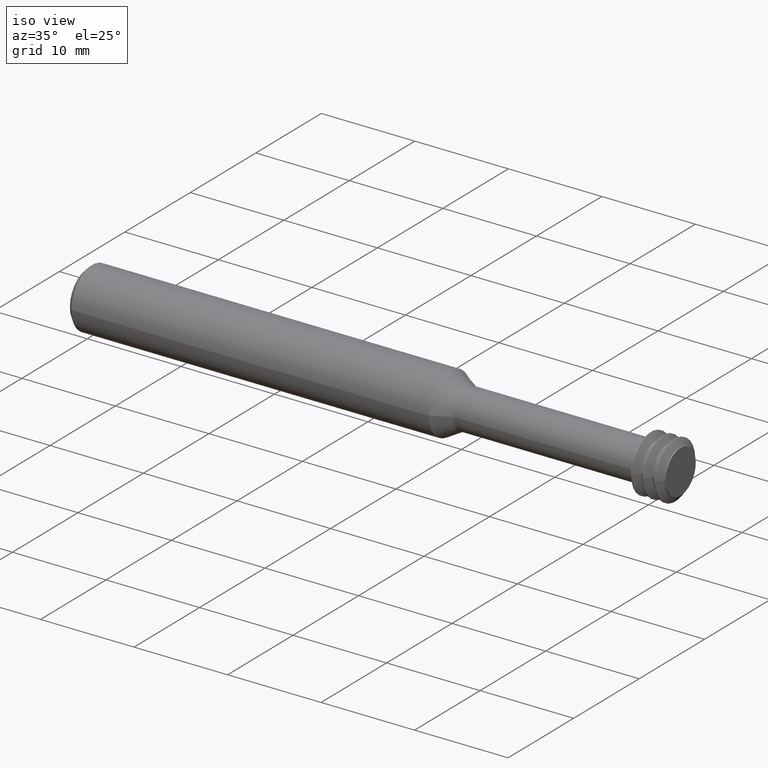
[diagram: clean part render]
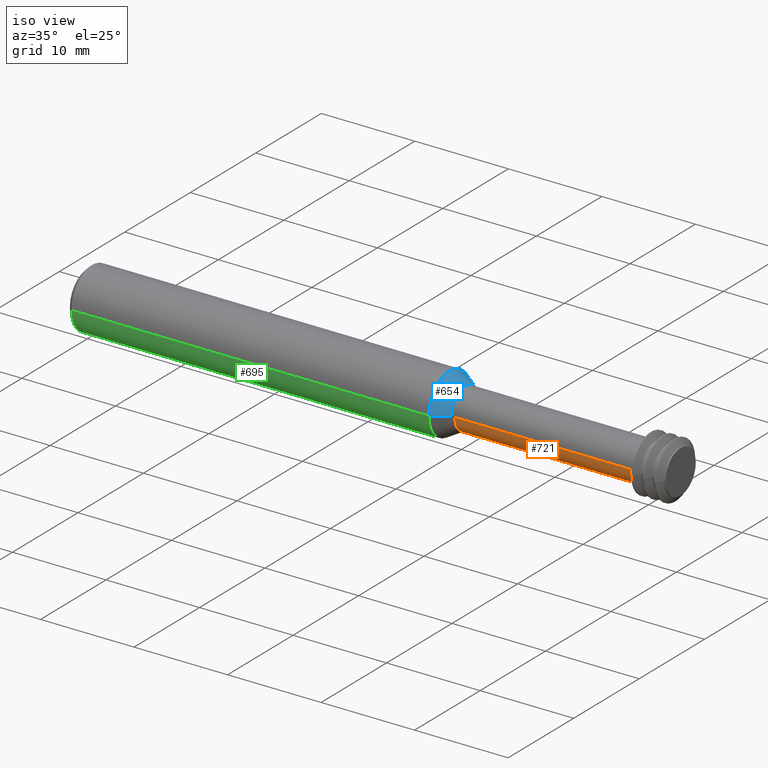
[diagram: same view with three faces highlighted in distinct colors, each labeled with its STEP entity id]
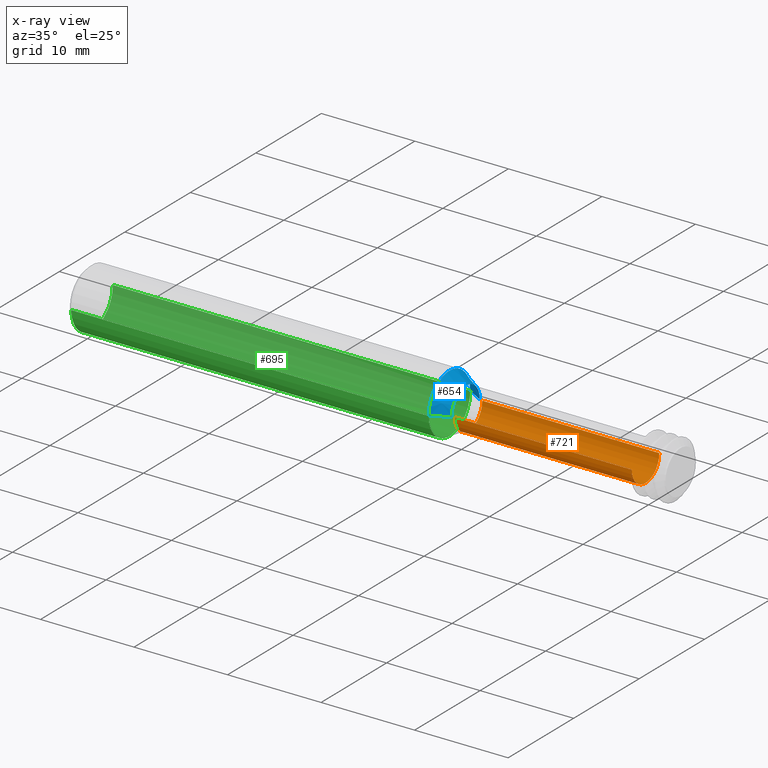
[diagram: x-ray of the same camera — body ghosted, the three highlighted faces saturated]
A machine part, iso view with three faces highlighted in distinct colors.
The next image is the same camera in x-ray (body ghosted, the three faces saturated) — at least one of them is partly hidden behind the body in this view.
Their STEP definitions:

[orange] entity #721 — the highlighted cylindrical surface (edge-blend (fillet) strip) has radius 2.0955 mm, axis along (-1, 0, -0).
#14 = VECTOR ( 'NONE', #234, 39.37007874015748143 ) ;
#32 = DIRECTION ( 'NONE',  ( 0.0000000000000000000, -1.000000000000000000, 0.0000000000000000000 ) ) ;
#41 = EDGE_CURVE ( 'NONE', #825, #909, #493, .T. ) ;
#69 = CARTESIAN_POINT ( 'NONE',  ( 2.350000000000000089, 0.08250000000000004552, 1.010333609296566932E-17 ) ) ;
#82 = DIRECTION ( 'NONE',  ( -1.000000000000000000, 2.239313081137374464E-19, -0.0000000000000000000 ) ) ;
#113 = CARTESIAN_POINT ( 'NONE',  ( 2.350000000000000089, -7.258347044323575049E-19, 0.0000000000000000000 ) ) ;
#137 = DIRECTION ( 'NONE',  ( 0.0000000000000000000, -1.000000000000000000, 0.0000000000000000000 ) ) ;
#141 = DIRECTION ( 'NONE',  ( -1.000000000000000000, 2.239313081137374464E-19, -0.0000000000000000000 ) ) ;
#150 = CARTESIAN_POINT ( 'NONE',  ( 1.604698729810777991, -5.589384160600548992E-19, 0.0000000000000000000 ) ) ;
#171 = EDGE_CURVE ( 'NONE', #825, #663, #604, .T. ) ;
#229 = CARTESIAN_POINT ( 'NONE',  ( 2.350000000000000089, 0.08250000000000004552, 1.010333609296566932E-17 ) ) ;
#234 = DIRECTION ( 'NONE',  ( -1.000000000000000000, 2.239313081137374464E-19, -0.0000000000000000000 ) ) ;
#237 = LINE ( 'NONE', #229, #14 ) ;
#349 = VERTEX_POINT ( 'NONE', #528 ) ;
#372 = CIRCLE ( 'NONE', #571, 0.08250000000000007327 ) ;
#374 = FACE_OUTER_BOUND ( 'NONE', #509, .T. ) ;
#376 = AXIS2_PLACEMENT_3D ( 'NONE', #620, #653, #747 ) ;
#477 = CYLINDRICAL_SURFACE ( 'NONE', #901, 0.08250000000000004552 ) ;
#491 = VECTOR ( 'NONE', #743, 39.37007874015748143 ) ;
#493 = LINE ( 'NONE', #959, #491 ) ;
#509 = EDGE_LOOP ( 'NONE', ( #726, #543, #889, #984 ) ) ;
#528 = CARTESIAN_POINT ( 'NONE',  ( 1.604698729810777991, 0.08250000000000007327, 1.030842554349373242E-17 ) ) ;
#543 = ORIENTED_EDGE ( 'NONE', *, *, #171, .F. ) ;
#551 = CARTESIAN_POINT ( 'NONE',  ( 1.604698729810777991, -0.08250000000000007327, 0.0000000000000000000 ) ) ;
#562 = EDGE_CURVE ( 'NONE', #663, #349, #237, .T. ) ;
#571 = AXIS2_PLACEMENT_3D ( 'NONE', #150, #141, #32 ) ;
#604 = CIRCLE ( 'NONE', #376, 0.08250000000000004552 ) ;
#620 = CARTESIAN_POINT ( 'NONE',  ( 2.350000000000000089, -7.258347044323575049E-19, 0.0000000000000000000 ) ) ;
#643 = CARTESIAN_POINT ( 'NONE',  ( 2.350000000000000089, -0.08250000000000004552, 0.0000000000000000000 ) ) ;
#653 = DIRECTION ( 'NONE',  ( 1.000000000000000000, -2.239313081137374464E-19, 0.0000000000000000000 ) ) ;
#663 = VERTEX_POINT ( 'NONE', #69 ) ;
#721 = ADVANCED_FACE ( 'NONE', ( #374 ), #477, .T. ) ;
#726 = ORIENTED_EDGE ( 'NONE', *, *, #562, .F. ) ;
#743 = DIRECTION ( 'NONE',  ( -1.000000000000000000, 2.239313081137374464E-19, -0.0000000000000000000 ) ) ;
#747 = DIRECTION ( 'NONE',  ( 0.0000000000000000000, 1.000000000000000000, 0.0000000000000000000 ) ) ;
#825 = VERTEX_POINT ( 'NONE', #643 ) ;
#889 = ORIENTED_EDGE ( 'NONE', *, *, #41, .T. ) ;
#901 = AXIS2_PLACEMENT_3D ( 'NONE', #113, #82, #137 ) ;
#909 = VERTEX_POINT ( 'NONE', #551 ) ;
#959 = CARTESIAN_POINT ( 'NONE',  ( 2.350000000000000089, -0.08250000000000004552, 0.0000000000000000000 ) ) ;
#984 = ORIENTED_EDGE ( 'NONE', *, *, #992, .F. ) ;
#992 = EDGE_CURVE ( 'NONE', #349, #909, #372, .T. ) ;

[blue] entity #654 — the highlighted conical surface has half-angle 30 deg.
#8 = DIRECTION ( 'NONE',  ( 0.0000000000000000000, -1.000000000000000000, 0.0000000000000000000 ) ) ;
#11 = DIRECTION ( 'NONE',  ( -1.000000000000000000, 2.239313081137374464E-19, -0.0000000000000000000 ) ) ;
#40 = DIRECTION ( 'NONE',  ( 0.0000000000000000000, -1.000000000000000000, 0.0000000000000000000 ) ) ;
#43 = AXIS2_PLACEMENT_3D ( 'NONE', #81, #11, #8 ) ;
#81 = CARTESIAN_POINT ( 'NONE',  ( 1.524647648299458425, -5.410124726613057189E-19, 0.0000000000000000000 ) ) ;
#125 = ORIENTED_EDGE ( 'NONE', *, *, #772, .T. ) ;
#139 = AXIS2_PLACEMENT_3D ( 'NONE', #292, #274, #40 ) ;
#199 = ORIENTED_EDGE ( 'NONE', *, *, #513, .F. ) ;
#274 = DIRECTION ( 'NONE',  ( -1.000000000000000000, 2.239313081137374464E-19, -0.0000000000000000000 ) ) ;
#292 = CARTESIAN_POINT ( 'NONE',  ( 1.592198729810778035, -5.561392747086332618E-19, 0.0000000000000000000 ) ) ;
#293 = VERTEX_POINT ( 'NONE', #546 ) ;
#301 = CARTESIAN_POINT ( 'NONE',  ( 1.592198729810778035, -0.08584936490538914999, 0.0000000000000000000 ) ) ;
#302 = DIRECTION ( 'NONE',  ( -0.8660254037844380415, -0.5000000000000009992, 0.0000000000000000000 ) ) ;
#308 = AXIS2_PLACEMENT_3D ( 'NONE', #538, #618, #621 ) ;
#357 = VECTOR ( 'NONE', #943, 39.37007874015748143 ) ;
#367 = VERTEX_POINT ( 'NONE', #530 ) ;
#426 = VERTEX_POINT ( 'NONE', #540 ) ;
#513 = EDGE_CURVE ( 'NONE', #910, #426, #989, .T. ) ;
#530 = CARTESIAN_POINT ( 'NONE',  ( 1.592198729810778035, 0.08584936490538914999, 1.290161514068824987E-17 ) ) ;
#538 = CARTESIAN_POINT ( 'NONE',  ( 1.592198729810778035, -5.561392747086332618E-19, 0.0000000000000000000 ) ) ;
#540 = CARTESIAN_POINT ( 'NONE',  ( 1.524647648299458425, -0.1248500000000000026, 0.0000000000000000000 ) ) ;
#546 = CARTESIAN_POINT ( 'NONE',  ( 1.524647648299458425, 0.1248500000000000026, 1.528971528735470422E-17 ) ) ;
#559 = CONICAL_SURFACE ( 'NONE', #139, 0.08584936490538914999, 0.5235987755983000369 ) ;
#568 = CIRCLE ( 'NONE', #43, 0.1248500000000000026 ) ;
#618 = DIRECTION ( 'NONE',  ( -1.000000000000000000, 2.239313081137374464E-19, -0.0000000000000000000 ) ) ;
#621 = DIRECTION ( 'NONE',  ( 0.0000000000000000000, -1.000000000000000000, 0.0000000000000000000 ) ) ;
#623 = CARTESIAN_POINT ( 'NONE',  ( 1.592198729810778035, 0.08584936490538914999, 1.051351499402179399E-17 ) ) ;
#654 = ADVANCED_FACE ( 'NONE', ( #927 ), #559, .T. ) ;
#671 = LINE ( 'NONE', #623, #357 ) ;
#717 = ORIENTED_EDGE ( 'NONE', *, *, #790, .F. ) ;
#739 = CIRCLE ( 'NONE', #308, 0.08584936490538914999 ) ;
#772 = EDGE_CURVE ( 'NONE', #367, #293, #671, .T. ) ;
#790 = EDGE_CURVE ( 'NONE', #426, #293, #568, .T. ) ;
#791 = EDGE_LOOP ( 'NONE', ( #828, #125, #717, #199 ) ) ;
#799 = EDGE_CURVE ( 'NONE', #910, #367, #739, .T. ) ;
#828 = ORIENTED_EDGE ( 'NONE', *, *, #799, .T. ) ;
#829 = VECTOR ( 'NONE', #302, 39.37007874015748143 ) ;
#910 = VERTEX_POINT ( 'NONE', #1024 ) ;
#927 = FACE_OUTER_BOUND ( 'NONE', #791, .T. ) ;
#943 = DIRECTION ( 'NONE',  ( -0.8660254037844380415, 0.5000000000000009992, 6.123233995736778362E-17 ) ) ;
#989 = LINE ( 'NONE', #301, #829 ) ;
#1024 = CARTESIAN_POINT ( 'NONE',  ( 1.592198729810778035, -0.08584936490538914999, 0.0000000000000000000 ) ) ;

[green] entity #695 — the highlighted cylindrical surface (edge-blend (fillet) strip) has radius 3.1712 mm, axis along (-1, 0, -0).
#10 = DIRECTION ( 'NONE',  ( 0.0000000000000000000, -1.000000000000000000, 0.0000000000000000000 ) ) ;
#50 = EDGE_CURVE ( 'NONE', #227, #685, #451, .T. ) ;
#64 = ORIENTED_EDGE ( 'NONE', *, *, #130, .F. ) ;
#74 = ORIENTED_EDGE ( 'NONE', *, *, #1026, .T. ) ;
#122 = LINE ( 'NONE', #778, #691 ) ;
#130 = EDGE_CURVE ( 'NONE', #293, #227, #122, .T. ) ;
#175 = ORIENTED_EDGE ( 'NONE', *, *, #362, .T. ) ;
#227 = VERTEX_POINT ( 'NONE', #424 ) ;
#293 = VERTEX_POINT ( 'NONE', #546 ) ;
#317 = VECTOR ( 'NONE', #712, 39.37007874015748143 ) ;
#362 = EDGE_CURVE ( 'NONE', #293, #426, #591, .T. ) ;
#398 = AXIS2_PLACEMENT_3D ( 'NONE', #454, #449, #448 ) ;
#424 = CARTESIAN_POINT ( 'NONE',  ( 0.02000000000000005940, 0.1248500000000000026, 0.0000000000000000000 ) ) ;
#426 = VERTEX_POINT ( 'NONE', #540 ) ;
#448 = DIRECTION ( 'NONE',  ( 0.0000000000000000000, -1.000000000000000000, 0.0000000000000000000 ) ) ;
#449 = DIRECTION ( 'NONE',  ( -1.000000000000000000, 2.239313081137374464E-19, -0.0000000000000000000 ) ) ;
#451 = CIRCLE ( 'NONE', #1004, 0.1248500000000000026 ) ;
#454 = CARTESIAN_POINT ( 'NONE',  ( 1.524647648299458425, -5.410124726613057189E-19, 0.0000000000000000000 ) ) ;
#531 = CYLINDRICAL_SURFACE ( 'NONE', #677, 0.1248500000000000026 ) ;
#540 = CARTESIAN_POINT ( 'NONE',  ( 1.524647648299458425, -0.1248500000000000026, 0.0000000000000000000 ) ) ;
#546 = CARTESIAN_POINT ( 'NONE',  ( 1.524647648299458425, 0.1248500000000000026, 1.528971528735470422E-17 ) ) ;
#591 = CIRCLE ( 'NONE', #398, 0.1248500000000000026 ) ;
#624 = DIRECTION ( 'NONE',  ( -1.000000000000000000, 2.239313081137374464E-19, -0.0000000000000000000 ) ) ;
#642 = CARTESIAN_POINT ( 'NONE',  ( 2.350000000000000089, -7.258347044323575049E-19, 0.0000000000000000000 ) ) ;
#677 = AXIS2_PLACEMENT_3D ( 'NONE', #642, #624, #10 ) ;
#685 = VERTEX_POINT ( 'NONE', #884 ) ;
#691 = VECTOR ( 'NONE', #947, 39.37007874015748143 ) ;
#695 = ADVANCED_FACE ( 'NONE', ( #700 ), #531, .T. ) ;
#700 = FACE_OUTER_BOUND ( 'NONE', #727, .T. ) ;
#704 = ORIENTED_EDGE ( 'NONE', *, *, #50, .F. ) ;
#712 = DIRECTION ( 'NONE',  ( -1.000000000000000000, 2.239313081137374464E-19, -0.0000000000000000000 ) ) ;
#724 = LINE ( 'NONE', #996, #317 ) ;
#727 = EDGE_LOOP ( 'NONE', ( #64, #175, #74, #704 ) ) ;
#778 = CARTESIAN_POINT ( 'NONE',  ( 2.350000000000000089, 0.1248500000000000026, 1.528971528735470422E-17 ) ) ;
#884 = CARTESIAN_POINT ( 'NONE',  ( 0.02000000000000005940, -0.1248500000000000026, 1.528971528735470422E-17 ) ) ;
#916 = DIRECTION ( 'NONE',  ( 0.0000000000000000000, -1.000000000000000000, 0.0000000000000000000 ) ) ;
#919 = DIRECTION ( 'NONE',  ( -1.000000000000000000, 2.239313081137374464E-19, -0.0000000000000000000 ) ) ;
#932 = CARTESIAN_POINT ( 'NONE',  ( 0.02000000000000005940, -2.040747565273492847E-19, 0.0000000000000000000 ) ) ;
#947 = DIRECTION ( 'NONE',  ( -1.000000000000000000, 2.239313081137374464E-19, -0.0000000000000000000 ) ) ;
#996 = CARTESIAN_POINT ( 'NONE',  ( 2.350000000000000089, -0.1248500000000000026, 0.0000000000000000000 ) ) ;
#1004 = AXIS2_PLACEMENT_3D ( 'NONE', #932, #919, #916 ) ;
#1026 = EDGE_CURVE ( 'NONE', #426, #685, #724, .T. ) ;